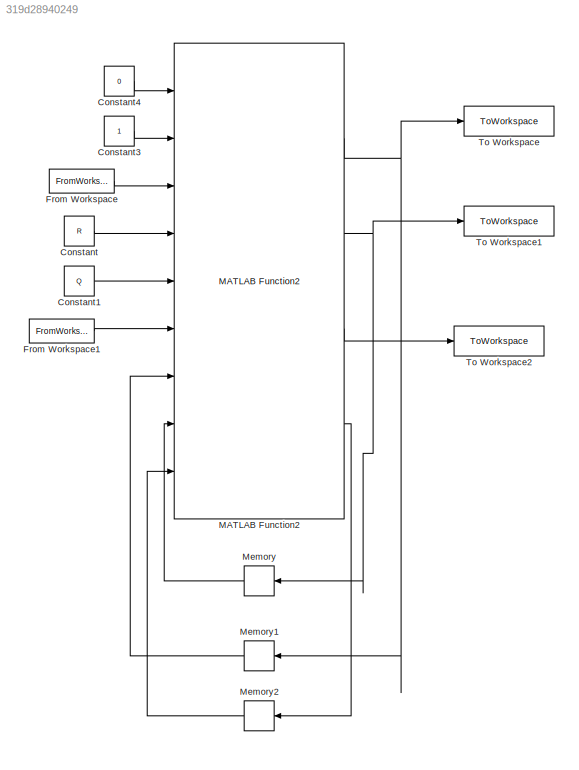
MODEL slx_319d28940249
KIND model
CONFIG AbsTol = auto
CONFIG EnableMultiTasking = off
CONFIG FixedStep = dt
CONFIG MaxStep = auto
CONFIG MinStep = auto
CONFIG RelTol = 1e-3
CONFIG SampleTimeConstraint = Unconstrained
CONFIG Solver = FixedStepDiscrete
CONFIG SolverName = FixedStepDiscrete
CONFIG StartTime = time_start
CONFIG StopTime = time_end
BLOCK [Constant] Constant
  Value = R
BLOCK [Constant] Constant1
  Value = Q
BLOCK [Constant] Constant3
BLOCK [Constant] Constant4
  Value = 0
BLOCK [FromWorkspace] From Workspace
  Interpolate = off
  OutputAfterFinalValue = Setting to zero
  SampleTime = 0
  VariableName = z
  ZeroCross = on
BLOCK [FromWorkspace] From Workspace1
  Interpolate = off
  OutputAfterFinalValue = Setting to zero
  SampleTime = 0
  VariableName = C
  ZeroCross = on
BLOCK [Reference] MATLAB Function2  REF=posefilter/MATLAB Function2  (lib defined in slx_956faf5b2c37)
  Ports = [9, 4]
  SourceBlock = posefilter/MATLAB Function2
  SourceProductName = Pose Filter Library
  SourceType = SubSystem
BLOCK [Memory] Memory
  InheritSampleTime = on
BLOCK [Memory] Memory1
  InheritSampleTime = on
BLOCK [Memory] Memory2
  InheritSampleTime = on
BLOCK [ToWorkspace] To Workspace
  FixptAsFi = on
  MaxDataPoints = inf
  Ports = [1]
  SampleTime = -1
  SaveFormat = Timeseries
  VariableName = xhat
BLOCK [ToWorkspace] To Workspace1
  FixptAsFi = on
  MaxDataPoints = inf
  Ports = [1]
  SampleTime = -1
  SaveFormat = Timeseries
  VariableName = P
BLOCK [ToWorkspace] To Workspace2
  FixptAsFi = on
  MaxDataPoints = inf
  Ports = [1]
  SampleTime = -1
  SaveFormat = Timeseries
  VariableName = G
LINE Constant1:1 -> MATLAB Function2:5
LINE Constant3:1 -> MATLAB Function2:2
LINE Constant4:1 -> MATLAB Function2:1
LINE Constant:1 -> MATLAB Function2:4
LINE From Workspace1:1 -> MATLAB Function2:6
LINE From Workspace:1 -> MATLAB Function2:3
NET MATLAB Function2:1 -> Memory1:1, To Workspace:1
NET MATLAB Function2:2 -> Memory:1, To Workspace1:1
LINE MATLAB Function2:3 -> To Workspace2:1
LINE MATLAB Function2:4 -> Memory2:1
LINE Memory1:1 -> MATLAB Function2:7
LINE Memory2:1 -> MATLAB Function2:9
LINE Memory:1 -> MATLAB Function2:8
note: NET lines group one-source signal fan-out (src -> all destinations, sorted); 1:1 wires keep LINE
